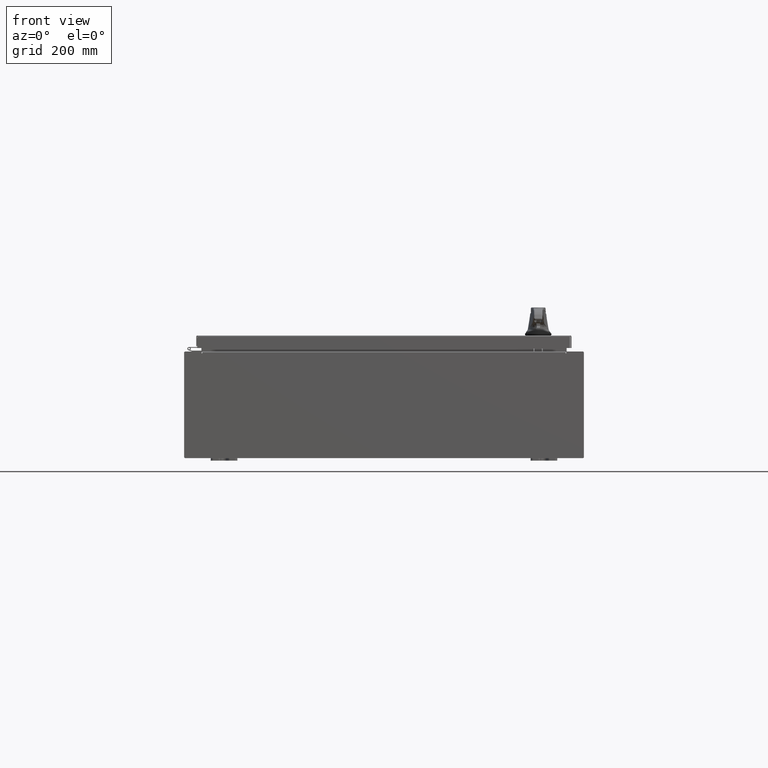
[diagram: clean part render]
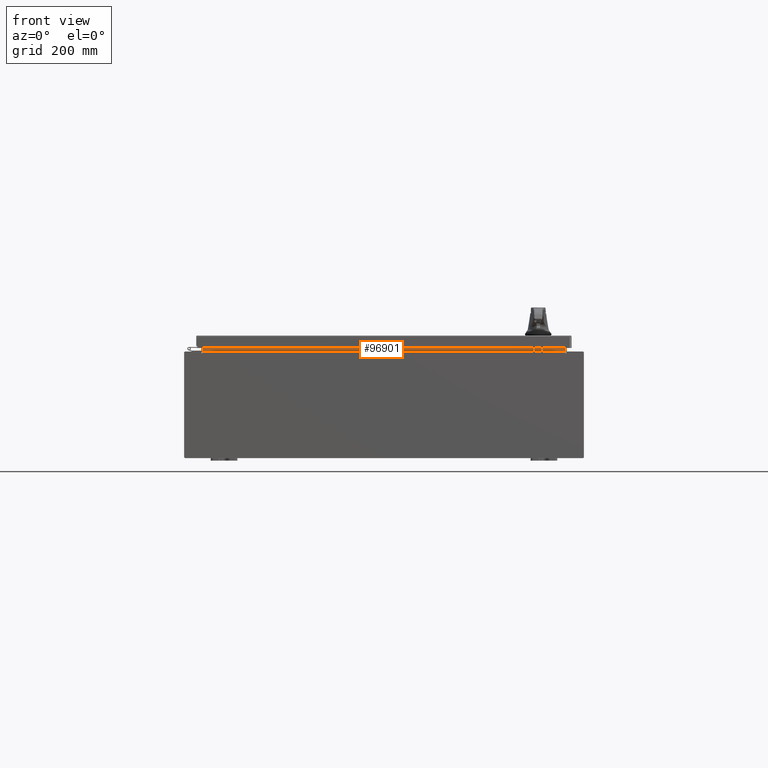
[diagram: same view with one face highlighted and labeled with its STEP entity id]
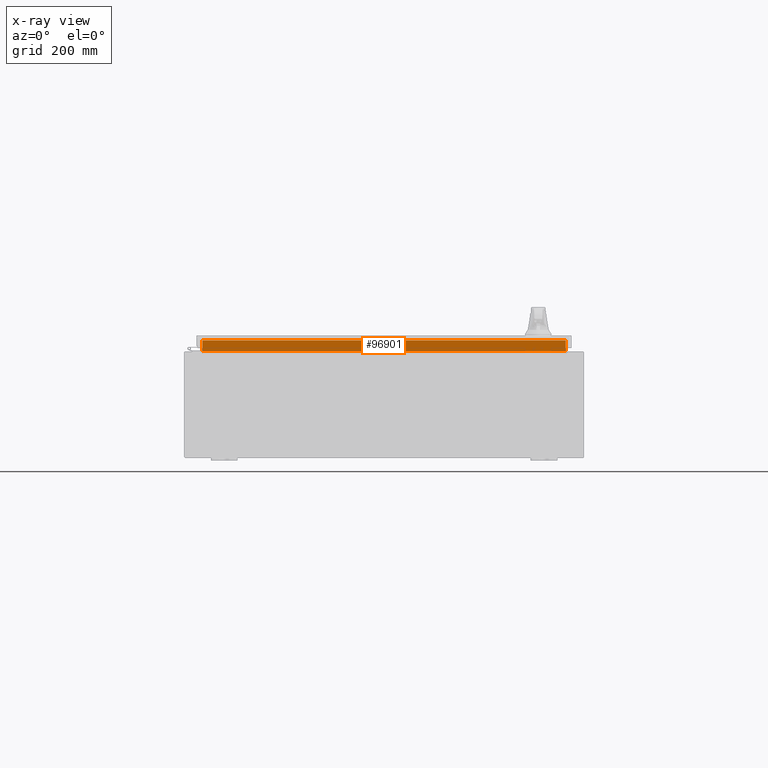
[diagram: x-ray of the same camera — body ghosted, the highlighted face saturated]
A machine part, front view. The second image highlights one B-rep face of the part: STEP entity #96901.
The next image is the same camera in x-ray: the body ghosted, the highlighted face saturated — about 0% of this face is hidden behind the body in this view.
In plain terms, the highlighted planar face has unit normal (0, -1, 0).
Its self-contained STEP definition (entity closure, byte-faithful):
#1265 = CARTESIAN_POINT ( 'NONE',  ( 0.0000000000000000000, -1.300299999999999800, 0.0000000000000000000 ) ) ;
#9563 = VECTOR ( 'NONE', #75059, 39.37007874015748100 ) ;
#11225 = DIRECTION ( 'NONE',  ( 0.0000000000000000000, -0.0000000000000000000, 1.000000000000000000 ) ) ;
#17143 = VERTEX_POINT ( 'NONE', #60201 ) ;
#20192 = VERTEX_POINT ( 'NONE', #115142 ) ;
#25463 = CARTESIAN_POINT ( 'NONE',  ( 13.63720000000000400, -1.300299999999999300, 4.837600000000003700 ) ) ;
#41309 = VECTOR ( 'NONE', #66736, 39.37007874015748100 ) ;
#41718 = ORIENTED_EDGE ( 'NONE', *, *, #85174, .F. ) ;
#47584 = ORIENTED_EDGE ( 'NONE', *, *, #101854, .F. ) ;
#48571 = VERTEX_POINT ( 'NONE', #71875 ) ;
#48618 = ORIENTED_EDGE ( 'NONE', *, *, #104639, .F. ) ;
#50513 = VECTOR ( 'NONE', #125203, 39.37007874015748100 ) ;
#59982 = PLANE ( 'NONE',  #86367 ) ;
#60201 = CARTESIAN_POINT ( 'NONE',  ( -13.63719999999999800, -1.300299999999999800, 4.013000000000003500 ) ) ;
#64489 = CARTESIAN_POINT ( 'NONE',  ( -13.63719999999999800, -1.300299999999999300, 4.837600000000003700 ) ) ;
#66736 = DIRECTION ( 'NONE',  ( -0.0000000000000000000, -0.0000000000000000000, -1.000000000000000000 ) ) ;
#67791 = LINE ( 'NONE', #86356, #41309 ) ;
#70827 = DIRECTION ( 'NONE',  ( 0.0000000000000000000, 1.000000000000000000, 0.0000000000000000000 ) ) ;
#71875 = CARTESIAN_POINT ( 'NONE',  ( 13.63720000000000000, -1.300299999999999800, 4.013000000000003500 ) ) ;
#71967 = DIRECTION ( 'NONE',  ( 1.000000000000000000, 0.0000000000000000000, -2.003232330437526000E-017 ) ) ;
#75059 = DIRECTION ( 'NONE',  ( -1.000000000000000000, -0.0000000000000000000, -0.0000000000000000000 ) ) ;
#76962 = LINE ( 'NONE', #95316, #50513 ) ;
#85174 = EDGE_CURVE ( 'NONE', #48571, #20192, #76962, .T. ) ;
#86356 = CARTESIAN_POINT ( 'NONE',  ( -13.63719999999999800, -1.300299999999999800, 4.000000000000004400 ) ) ;
#86367 = AXIS2_PLACEMENT_3D ( 'NONE', #1265, #70827, #11225 ) ;
#95316 = CARTESIAN_POINT ( 'NONE',  ( 13.63720000000000400, -1.300299999999999800, 4.925300000000004500 ) ) ;
#95415 = VECTOR ( 'NONE', #71967, 39.37007874015748100 ) ;
#96901 = ADVANCED_FACE ( 'NONE', ( #127580 ), #59982, .T. ) ;
#101854 = EDGE_CURVE ( 'NONE', #123826, #17143, #67791, .T. ) ;
#104639 = EDGE_CURVE ( 'NONE', #17143, #48571, #121802, .T. ) ;
#110520 = EDGE_CURVE ( 'NONE', #20192, #123826, #121574, .T. ) ;
#111479 = CARTESIAN_POINT ( 'NONE',  ( -13.63719999999999800, -1.300299999999999800, 4.013000000000003500 ) ) ;
#113237 = ORIENTED_EDGE ( 'NONE', *, *, #110520, .F. ) ;
#115142 = CARTESIAN_POINT ( 'NONE',  ( 13.63720000000000400, -1.300299999999999800, 4.837600000000003700 ) ) ;
#121574 = LINE ( 'NONE', #25463, #9563 ) ;
#121802 = LINE ( 'NONE', #111479, #95415 ) ;
#123826 = VERTEX_POINT ( 'NONE', #64489 ) ;
#124324 = EDGE_LOOP ( 'NONE', ( #47584, #113237, #41718, #48618 ) ) ;
#125203 = DIRECTION ( 'NONE',  ( -0.0000000000000000000, -0.0000000000000000000, 1.000000000000000000 ) ) ;
#127580 = FACE_OUTER_BOUND ( 'NONE', #124324, .T. ) ;